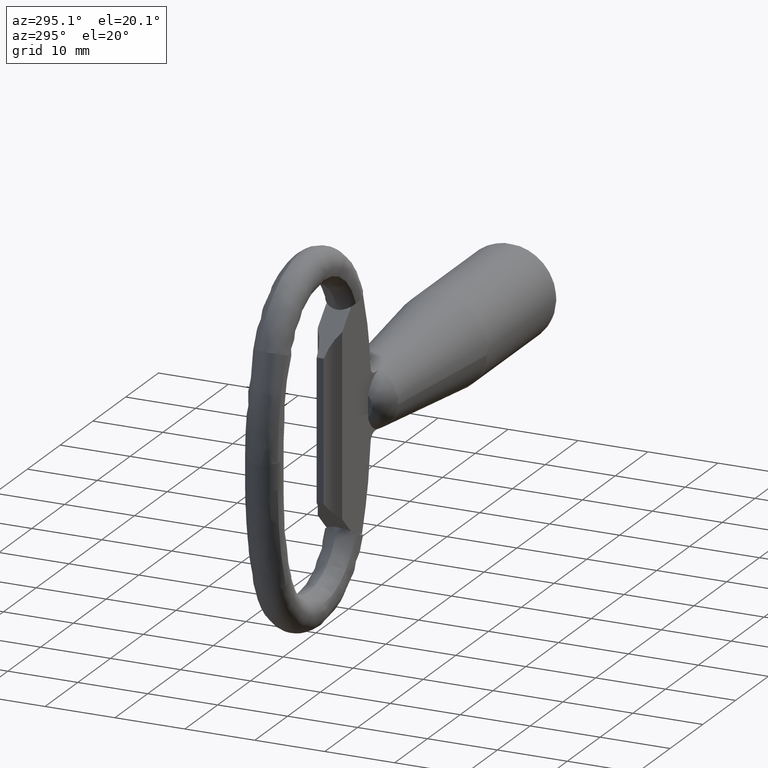
[diagram: clean part render]
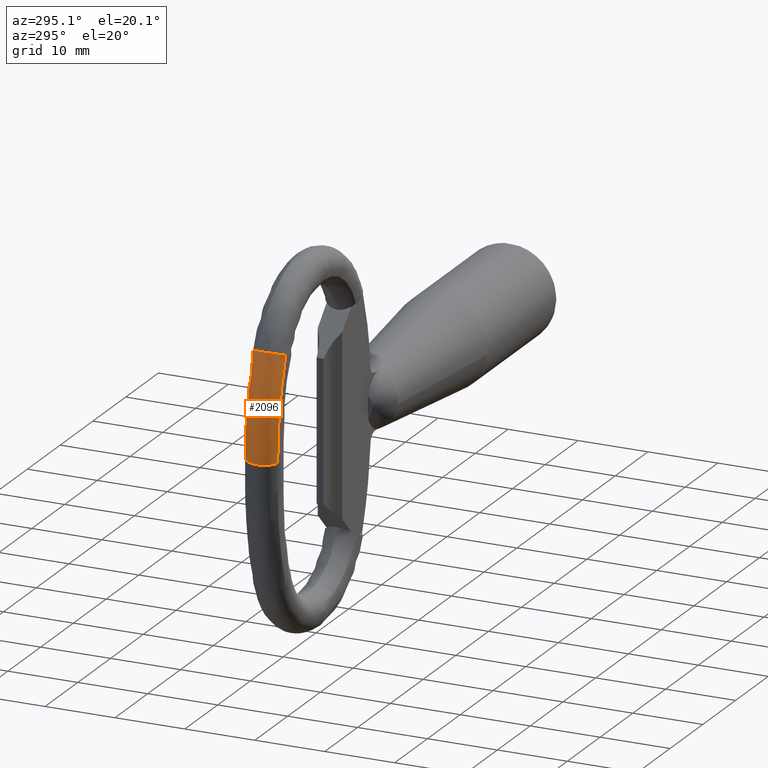
[diagram: same view with one face highlighted and labeled with its STEP entity id]
A machine part, auxiliary view. The second image highlights one B-rep face of the part: STEP entity #2096.
In plain terms, the highlighted face is a freeform B-spline surface patch.
Its self-contained STEP definition (entity closure, byte-faithful):
#671=CARTESIAN_POINT('',(-73.382339028106770,0.878732620741785,1.817413759843512));
#672=VERTEX_POINT('',#671);
#678=CARTESIAN_POINT('',(-73.221575897829794,0.000142196218092,1.817748010046420));
#679=VERTEX_POINT('',#678);
#680=CARTESIAN_POINT('',(-73.382339028106770,0.878732620741785,1.817413759843512));
#681=CARTESIAN_POINT('',(-73.277210214369617,0.598437239628265,1.817631580604299));
#682=CARTESIAN_POINT('',(-73.221202445082028,0.299709251892267,1.817748010046461));
#683=CARTESIAN_POINT('',(-73.221575897829794,0.000142196218092,1.817748010046420));
#684=B_SPLINE_CURVE_WITH_KNOTS('',3,(#680,#681,#682,#683),.UNSPECIFIED.,.F.,.U.,(4,4),(0.942811943035164,1.0),.UNSPECIFIED.);
#685=EDGE_CURVE('',#672,#679,#684,.T.);
#687=CARTESIAN_POINT('',(-76.640842683377940,-2.321964092407329,1.810688581406735));
#688=VERTEX_POINT('',#687);
#700=CARTESIAN_POINT('',(-78.221405813993002,0.000142196218093,1.807425345944015));
#701=VERTEX_POINT('',#700);
#702=CARTESIAN_POINT('',(-76.640842683377940,-2.321964092407329,1.810688581406735));
#703=CARTESIAN_POINT('',(-76.957157929314391,-2.196580526140366,1.810035515984706));
#704=CARTESIAN_POINT('',(-77.248549647016063,-2.008216931563366,1.809433907755128));
#705=CARTESIAN_POINT('',(-77.951982238248405,-1.304782841111800,1.807981598680670));
#706=CARTESIAN_POINT('',(-78.221405813993002,-0.654335404236586,1.807425345944015));
#707=CARTESIAN_POINT('',(-78.221405813993002,0.000142196218093,1.807425345944015));
#708=B_SPLINE_CURVE_WITH_KNOTS('',3,(#702,#703,#704,#705,#706,#707),.UNSPECIFIED.,.F.,.U.,(4,2,4),(0.309999985052760,0.375000000000000,0.500000000000000),.UNSPECIFIED.);
#709=EDGE_CURVE('',#688,#701,#708,.T.);
#711=CARTESIAN_POINT('',(-75.874102193571005,2.495302439578142,1.812271615658776));
#712=VERTEX_POINT('',#711);
#713=CARTESIAN_POINT('',(-78.221405813993002,0.000142196218093,1.807425345944015));
#714=CARTESIAN_POINT('',(-78.221406672503036,0.654633311305209,1.807425346884550));
#715=CARTESIAN_POINT('',(-77.951984282470633,1.305099413616757,1.807981600920205));
#716=CARTESIAN_POINT('',(-77.062424441538582,2.194699065483778,1.809818196039069));
#717=CARTESIAN_POINT('',(-76.476052502969480,2.457051409994972,1.811028824707046));
#718=CARTESIAN_POINT('',(-75.874102193571005,2.495302439578142,1.812271615658776));
#719=B_SPLINE_CURVE_WITH_KNOTS('',3,(#713,#714,#715,#716,#717,#718),.UNSPECIFIED.,.F.,.U.,(4,2,4),(0.500000000000000,0.625000000000000,0.740274356729461),.UNSPECIFIED.);
#720=EDGE_CURVE('',#701,#712,#719,.T.);
#807=CARTESIAN_POINT('',(-75.874102193571005,2.495302439578142,1.812271615658776));
#808=CARTESIAN_POINT('',(-75.823300201365853,2.498533137616930,1.812376469180703));
#809=CARTESIAN_POINT('',(-75.772386952148423,2.500168771184795,1.812481551640716));
#810=CARTESIAN_POINT('',(-75.066762253051053,2.500234395531152,1.813937916790745));
#811=CARTESIAN_POINT('',(-74.416050744369954,2.230887029630775,1.815280828115954));
#812=CARTESIAN_POINT('',(-73.701828974792605,1.517151904643618,1.816754628565761));
#813=CARTESIAN_POINT('',(-73.507550425896028,1.210900207697396,1.817155474939211));
#814=CARTESIAN_POINT('',(-73.382339028106770,0.878732620741785,1.817413759843512));
#815=B_SPLINE_CURVE_WITH_KNOTS('',3,(#807,#808,#809,#810,#811,#812,#813,#814),.UNSPECIFIED.,.F.,.U.,(4,2,2,4),(0.740274356729462,0.750000000000000,0.875000000000000,0.942811943035164),.UNSPECIFIED.);
#816=EDGE_CURVE('',#712,#672,#815,.T.);
#1785=CARTESIAN_POINT('',(-74.155184288781300,-2.321964049157975,16.032139225827731));
#1786=CARTESIAN_POINT('',(-74.452760172619932,-2.196580439509126,16.139397662542979));
#1787=CARTESIAN_POINT('',(-74.726888969168144,-2.008216876224432,16.238204816527070));
#1788=CARTESIAN_POINT('',(-75.388648226099804,-1.304782841111800,16.476729734825948));
#1789=CARTESIAN_POINT('',(-75.642110407882683,-0.654335404236586,16.568087801325760));
#1790=CARTESIAN_POINT('',(-75.642110407882683,0.654619796672772,16.568087801325760));
#1791=CARTESIAN_POINT('',(-75.388648226099804,1.305067233547988,16.476729734825948));
#1792=CARTESIAN_POINT('',(-74.517912361716043,2.230638332380395,16.162881158116900));
#1793=CARTESIAN_POINT('',(-73.906000524907171,2.500062482344925,15.942323274940870));
#1794=CARTESIAN_POINT('',(-72.674594056251266,2.500062482344925,15.498474361227490));
#1795=CARTESIAN_POINT('',(-72.062682219442451,2.230638332380395,15.277916478051520));
#1796=CARTESIAN_POINT('',(-71.191946355058462,1.305067233547986,14.964067901342400));
#1797=CARTESIAN_POINT('',(-70.938484173275782,0.654619796672772,14.872709834842659));
#1798=CARTESIAN_POINT('',(-70.938484173275782,0.000142196218092,14.872709834842659));
#1799=CARTESIAN_POINT('',(-74.165910867581260,-2.321964049157975,16.002370261148830));
#1800=CARTESIAN_POINT('',(-74.463468690491197,-2.196580439509126,16.109678822744659));
#1801=CARTESIAN_POINT('',(-74.737580849197059,-2.008216876224432,16.208532152087489));
#1802=CARTESIAN_POINT('',(-75.399299941628186,-1.304782841111800,16.447168539781291));
#1803=CARTESIAN_POINT('',(-75.652746739898376,-0.654335404236586,16.538569300472009));
#1804=CARTESIAN_POINT('',(-75.652746739898376,0.654619796672772,16.538569300472009));
#1805=CARTESIAN_POINT('',(-75.399299941628186,1.305067233547988,16.447168539781291));
#1806=CARTESIAN_POINT('',(-74.528616925271436,2.230638332380395,16.133173292815759));
#1807=CARTESIAN_POINT('',(-73.916742227547573,2.500062482344925,15.912512336744999));
#1808=CARTESIAN_POINT('',(-72.685410497288302,2.500062482344925,15.468455999965681));
#1809=CARTESIAN_POINT('',(-72.073535799564482,2.230638332380395,15.247795043895000));
#1810=CARTESIAN_POINT('',(-71.202852783207447,1.305067233547986,14.933799796929391));
#1811=CARTESIAN_POINT('',(-70.949405984937513,0.654619796672772,14.842399036238760));
#1812=CARTESIAN_POINT('',(-70.949405984937513,0.000142196218092,14.842399036238760));
#1813=CARTESIAN_POINT('',(-74.176651715205992,-2.321964049157975,15.972561536025250));
#1814=CARTESIAN_POINT('',(-74.474196403826710,-2.196580439509126,16.079906548545289));
#1815=CARTESIAN_POINT('',(-74.748296463141799,-2.008216876224432,16.178793456711301));
#1816=CARTESIAN_POINT('',(-75.409986347098879,-1.304782841111800,16.417510905196050));
#1817=CARTESIAN_POINT('',(-75.663421958153350,-0.654335404236586,16.508942713196980));
#1818=CARTESIAN_POINT('',(-75.663421958153350,0.654619796672772,16.508942713196980));
#1819=CARTESIAN_POINT('',(-75.409986347098879,1.305067233547988,16.417510905196050));
#1820=CARTESIAN_POINT('',(-74.539341762944815,2.230638332380395,16.103408999295070));
#1821=CARTESIAN_POINT('',(-73.927494073548871,2.500062482344926,15.882673088386889));
#1822=CARTESIAN_POINT('',(-72.696216694631858,2.500062482344926,15.438465913094451));
#1823=CARTESIAN_POINT('',(-72.084369005235942,2.230638332380395,15.217730002186370));
#1824=CARTESIAN_POINT('',(-71.213724421081608,1.305067233547986,14.903628096285320));
#1825=CARTESIAN_POINT('',(-70.960288810027393,0.654619796672772,14.812196288284460));
#1826=CARTESIAN_POINT('',(-70.960288810027393,0.000142196218092,14.812196288284460));
#1827=CARTESIAN_POINT('',(-74.388981317951050,-2.321964049157975,15.383279104264650));
#1828=CARTESIAN_POINT('',(-74.687345550813504,-2.196580439509126,15.488349576368140));
#1829=CARTESIAN_POINT('',(-74.962200579495331,-2.008216876224432,15.585141163438060));
#1830=CARTESIAN_POINT('',(-75.625712993493792,-1.304782841111800,15.818800412460700));
#1831=CARTESIAN_POINT('',(-75.879846656650599,-0.654335404236586,15.908294865965050));
#1832=CARTESIAN_POINT('',(-75.879846656650599,0.654619796672772,15.908294865965050));
#1833=CARTESIAN_POINT('',(-75.625712993493792,1.305067233547988,15.818800412460700));
#1834=CARTESIAN_POINT('',(-74.752670343495808,2.230638332380395,15.511354032167750));
#1835=CARTESIAN_POINT('',(-74.139137407245499,2.500062482344925,15.295295308760350));
#1836=CARTESIAN_POINT('',(-72.904468651081189,2.500062482344925,14.860500468048180));
#1837=CARTESIAN_POINT('',(-72.290935714830994,2.230638332380395,14.644441744639741));
#1838=CARTESIAN_POINT('',(-71.417893064836989,1.305067233547986,14.336995364347800));
#1839=CARTESIAN_POINT('',(-71.163759401676103,0.654619796672772,14.247500910842460));
#1840=CARTESIAN_POINT('',(-71.163759401676103,0.000142196218092,14.247500910842460));
#1841=CARTESIAN_POINT('',(-74.582604037590841,-2.321964049157975,14.807373962373809));
#1842=CARTESIAN_POINT('',(-74.883206637523017,-2.196580439509126,14.905938074614550));
#1843=CARTESIAN_POINT('',(-75.160123664183885,-2.008216876224432,14.996735961603409));
#1844=CARTESIAN_POINT('',(-75.828613834145600,-1.304782841111800,15.215926148776100));
#1845=CARTESIAN_POINT('',(-76.084654040916703,-0.654335404236586,15.299878768227851));
#1846=CARTESIAN_POINT('',(-76.084654040916703,0.654619796672772,15.299878768227851));
#1847=CARTESIAN_POINT('',(-75.828613834145600,1.305067233547988,15.215926148776100));
#1848=CARTESIAN_POINT('',(-74.949021505248595,2.230638332380395,14.927518007759399));
#1849=CARTESIAN_POINT('',(-74.330885765549894,2.500062482344925,14.724838455281700));
#1850=CARTESIAN_POINT('',(-73.086954364662816,2.500062482344925,14.316967750756980));
#1851=CARTESIAN_POINT('',(-72.468818624964101,2.230638332380395,14.114288198278260));
#1852=CARTESIAN_POINT('',(-71.589226296067096,1.305067233547986,13.825880057263600));
#1853=CARTESIAN_POINT('',(-71.333186089296007,0.654619796672772,13.741927437809800));
#1854=CARTESIAN_POINT('',(-71.333186089296007,0.000142196218092,13.741927437809800));
#1855=CARTESIAN_POINT('',(-74.940341413865269,-2.321964049157975,13.660441445548891));
#1856=CARTESIAN_POINT('',(-75.243674994182754,-2.196580439509126,13.750249832463529));
#1857=CARTESIAN_POINT('',(-75.523107817342151,-2.008216876224432,13.832981889602280));
#1858=CARTESIAN_POINT('',(-76.197671233311695,-1.304782841111800,14.032700800369181));
#1859=CARTESIAN_POINT('',(-76.456037570273409,-0.654335404236586,14.109195674201841));
#1860=CARTESIAN_POINT('',(-76.456037570273409,0.654619796672772,14.109195674201841));
#1861=CARTESIAN_POINT('',(-76.197671233311695,1.305067233547988,14.032700800369181));
#1862=CARTESIAN_POINT('',(-75.310087791246502,2.230638332380395,13.769912759886420));
#1863=CARTESIAN_POINT('',(-74.686336276491886,2.500062482344925,13.585237798028039));
#1864=CARTESIAN_POINT('',(-73.431103734987090,2.500062482344925,13.213599387147999));
#1865=CARTESIAN_POINT('',(-72.807352220232488,2.230638332380395,13.028924425290640));
#1866=CARTESIAN_POINT('',(-71.919768778167310,1.305067233547986,12.766136384805860));
#1867=CARTESIAN_POINT('',(-71.661402441205595,0.654619796672772,12.689641510975219));
#1868=CARTESIAN_POINT('',(-71.661402441205595,0.000142196218092,12.689641510975219));
#1869=CARTESIAN_POINT('',(-75.106719072180539,-2.321964049157975,13.083144130056629));
#1870=CARTESIAN_POINT('',(-75.411322785705323,-2.196580439509126,13.168545407876479));
#1871=CARTESIAN_POINT('',(-75.691925663651688,-2.008216876224432,13.247217608091200));
#1872=CARTESIAN_POINT('',(-76.369313644559199,-1.304782841111800,13.437135841456939));
#1873=CARTESIAN_POINT('',(-76.628761825683000,-0.654335404236586,13.509876931643159));
#1874=CARTESIAN_POINT('',(-76.628761825683000,0.654619796672772,13.509876931643159));
#1875=CARTESIAN_POINT('',(-76.369313644559199,1.305067233547988,13.437135841456939));
#1876=CARTESIAN_POINT('',(-75.478013669680905,2.230638332380395,13.187243429133600));
#1877=CARTESIAN_POINT('',(-74.851650352071601,2.500062482344925,13.011630902666241));
#1878=CARTESIAN_POINT('',(-73.591161839449796,2.500062482344925,12.658229664023700));
#1879=CARTESIAN_POINT('',(-72.964798521840493,2.230638332380395,12.482617137556360));
#1880=CARTESIAN_POINT('',(-72.073498546962199,1.305067233547986,12.232724725232000));
#1881=CARTESIAN_POINT('',(-71.814050365834291,0.654619796672772,12.159983635046800));
#1882=CARTESIAN_POINT('',(-71.814050365834291,0.000142196218092,12.159983635046800));
#1883=CARTESIAN_POINT('',(-75.567947948336325,-2.321964049157975,11.341322755758860));
#1884=CARTESIAN_POINT('',(-75.876072700189496,-2.196580439509126,11.413426904674621));
#1885=CARTESIAN_POINT('',(-76.159919181036173,-2.008216876224432,11.479849705183360));
#1886=CARTESIAN_POINT('',(-76.845137365384105,-1.304782841111800,11.640197336157501));
#1887=CARTESIAN_POINT('',(-77.107584613663690,-0.654335404236586,11.701612510880199));
#1888=CARTESIAN_POINT('',(-77.107584613663690,0.654619796672772,11.701612510880199));
#1889=CARTESIAN_POINT('',(-76.845137365384105,1.305067233547988,11.640197336157501));
#1890=CARTESIAN_POINT('',(-75.943534491242090,2.230638332380395,11.429213611191519));
#1891=CARTESIAN_POINT('',(-75.309930785052202,2.500062482344925,11.280944263436419));
#1892=CARTESIAN_POINT('',(-74.034871772578313,2.500062482344925,10.982568218151020));
#1893=CARTESIAN_POINT('',(-73.401268066388397,2.230638332380395,10.834298870395919));
#1894=CARTESIAN_POINT('',(-72.499665192246411,1.305067233547986,10.623315145432001));
#1895=CARTESIAN_POINT('',(-72.237217943974997,0.654619796672772,10.561899970707261));
#1896=CARTESIAN_POINT('',(-72.237217943974997,0.000142196218092,10.561899970707261));
#1897=CARTESIAN_POINT('',(-75.824874095828790,-2.321964049157975,10.166861756118180));
#1898=CARTESIAN_POINT('',(-76.134960231412578,-2.196580439509126,10.230000026249980));
#1899=CARTESIAN_POINT('',(-76.420613551423969,-2.008216876224432,10.288163402206710));
#1900=CARTESIAN_POINT('',(-77.110193526852882,-1.304782841111800,10.428572410448361));
#1901=CARTESIAN_POINT('',(-77.374311396390098,-0.654335404236586,10.482350839987699));
#1902=CARTESIAN_POINT('',(-77.374311396390098,0.654619796672772,10.482350839987699));
#1903=CARTESIAN_POINT('',(-77.110193526852882,1.305067233547988,10.428572410448361));
#1904=CARTESIAN_POINT('',(-76.202851453920104,2.230638332380395,10.243823715393560));
#1905=CARTESIAN_POINT('',(-75.565214511207898,2.500062482344925,10.113991101436859));
#1906=CARTESIAN_POINT('',(-74.282039045945197,2.500062482344925,9.852716991259559));
#1907=CARTESIAN_POINT('',(-73.644402103241106,2.230638332380395,9.722884377302860));
#1908=CARTESIAN_POINT('',(-72.737060030308299,1.305067233547986,9.538135682247031));
#1909=CARTESIAN_POINT('',(-72.472942160771098,0.654619796672772,9.484357252707721));
#1910=CARTESIAN_POINT('',(-72.472942160771098,0.000142196218092,9.484357252707721));
#1911=CARTESIAN_POINT('',(-76.441201068953205,-2.321964049157975,6.616650381661637));
#1912=CARTESIAN_POINT('',(-76.755992267479101,-2.196580439509126,6.652686206629257));
#1913=CARTESIAN_POINT('',(-77.045979921393766,-2.008216876224432,6.685882637749861));
#1914=CARTESIAN_POINT('',(-77.746023174039095,-1.304782841111800,6.766020317073139));
#1915=CARTESIAN_POINT('',(-78.014148611343899,-0.654335404236586,6.796714063827040));
#1916=CARTESIAN_POINT('',(-78.014148611343899,0.654619796672772,6.796714063827040));
#1917=CARTESIAN_POINT('',(-77.746023174039095,1.305067233547988,6.766020317073139));
#1918=CARTESIAN_POINT('',(-76.824913631084712,2.230638332380395,6.660576002174089));
#1919=CARTESIAN_POINT('',(-76.177601563947306,2.500062482344925,6.586474742480290));
#1920=CARTESIAN_POINT('',(-74.874955955888495,2.500062482344925,6.437353962275030));
#1921=CARTESIAN_POINT('',(-74.227643888734804,2.230638332380395,6.363252702581220));
#1922=CARTESIAN_POINT('',(-73.306534345780307,1.305067233547986,6.257808387684200));
#1923=CARTESIAN_POINT('',(-73.038408908475603,0.654619796672772,6.227114640930300));
#1924=CARTESIAN_POINT('',(-73.038408908475603,0.000142196218092,6.227114640930300));
#1925=CARTESIAN_POINT('',(-76.645804974141271,-2.321964049157975,4.214144108348466));
#1926=CARTESIAN_POINT('',(-76.962158126448585,-2.196580439509126,4.231839111414967));
#1927=CARTESIAN_POINT('',(-77.253584662121028,-2.008216876224432,4.248139860766552));
#1928=CARTESIAN_POINT('',(-77.957101440141003,-1.304782841111800,4.287490603607879));
#1929=CARTESIAN_POINT('',(-78.226557281669301,-0.654335404236586,4.302562436802335));
#1930=CARTESIAN_POINT('',(-78.226557281669301,0.654619796672772,4.302562436802335));
#1931=CARTESIAN_POINT('',(-77.957101440141003,1.305067233547988,4.287490603607879));
#1932=CARTESIAN_POINT('',(-77.031421469062096,2.230638332380395,4.235713310395606));
#1933=CARTESIAN_POINT('',(-76.380897522014010,2.500062482344925,4.199326686288015));
#1934=CARTESIAN_POINT('',(-75.071788352560588,2.500062482344925,4.126102536004001));
#1935=CARTESIAN_POINT('',(-74.421264405463603,2.230638332380395,4.089715911896540));
#1936=CARTESIAN_POINT('',(-73.495584434368297,1.305067233547986,4.037938618682764));
#1937=CARTESIAN_POINT('',(-73.226128592856313,0.654619796672772,4.022866785488280));
#1938=CARTESIAN_POINT('',(-73.226128592856313,0.000142196218092,4.022866785488280));
#1939=CARTESIAN_POINT('',(-76.640842792486552,-2.321964049157975,1.810688581181469));
#1940=CARTESIAN_POINT('',(-76.957158063329786,-2.196580439509126,1.810035515708018));
#1941=CARTESIAN_POINT('',(-77.248549702354865,-2.008216876224432,1.809433907640875));
#1942=CARTESIAN_POINT('',(-77.951982238248405,-1.304782841111800,1.807981598680670));
#1943=CARTESIAN_POINT('',(-78.221405813993002,-0.654335404236586,1.807425345944015));
#1944=CARTESIAN_POINT('',(-78.221405813993002,0.654619796672772,1.807425345944015));
#1945=CARTESIAN_POINT('',(-77.951982238248405,1.305067233547988,1.807981598680670));
#1946=CARTESIAN_POINT('',(-77.026413112072703,2.230638332380395,1.809892531523045));
#1947=CARTESIAN_POINT('',(-76.375967061487103,2.500062482344925,1.811235444423985));
#1948=CARTESIAN_POINT('',(-75.067014650335693,2.500062482344925,1.813937911566450));
#1949=CARTESIAN_POINT('',(-74.416568599750008,2.230638332380395,1.815280824467390));
#1950=CARTESIAN_POINT('',(-73.490999473574405,1.305067233547986,1.817191757309765));
#1951=CARTESIAN_POINT('',(-73.221575897829794,0.654619796672772,1.817748010046420));
#1952=CARTESIAN_POINT('',(-73.221575897829794,0.000142196218092,1.817748010046420));
#1953=B_SPLINE_SURFACE_WITH_KNOTS('',3,3,((#1785,#1799,#1813,#1827,#1841,#1855,#1869,#1883,#1897,#1911,#1925,#1939),(#1786,#1800,#1814,#1828,#1842,#1856,#1870,#1884,#1898,#1912,#1926,#1940),(#1787,#1801,#1815,#1829,#1843,#1857,#1871,#1885,#1899,#1913,#1927,#1941),(#1788,#1802,#1816,#1830,#1844,#1858,#1872,#1886,#1900,#1914,#1928,#1942),(#1789,#1803,#1817,#1831,#1845,#1859,#1873,#1887,#1901,#1915,#1929,#1943),(#1790,#1804,#1818,#1832,#1846,#1860,#1874,#1888,#1902,#1916,#1930,#1944),(#1791,#1805,#1819,#1833,#1847,#1861,#1875,#1889,#1903,#1917,#1931,#1945),(#1792,#1806,#1820,#1834,#1848,#1862,#1876,#1890,#1904,#1918,#1932,#1946),(#1793,#1807,#1821,#1835,#1849,#1863,#1877,#1891,#1905,#1919,#1933,#1947),(#1794,#1808,#1822,#1836,#1850,#1864,#1878,#1892,#1906,#1920,#1934,#1948),(#1795,#1809,#1823,#1837,#1851,#1865,#1879,#1893,#1907,#1921,#1935,#1949),(#1796,#1810,#1824,#1838,#1852,#1866,#1880,#1894,#1908,#1922,#1936,#1950),(#1797,#1811,#1825,#1839,#1853,#1867,#1881,#1895,#1909,#1923,#1937,#1951),(#1798,#1812,#1826,#1840,#1854,#1868,#1882,#1896,#1910,#1924,#1938,#1952)),.UNSPECIFIED.,.F.,.F.,.U.,(4,2,2,2,2,2,4),(4,2,2,2,2,4),(0.0,1.020985056709300,2.984417858073339,4.947850659437378,6.911283460801417,8.874716262165455,10.838149063529491),(0.0,0.102000130848009,1.986733035606250,3.871465940364490,7.640931749880971,15.179863368913940),.UNSPECIFIED.);
#1954=CARTESIAN_POINT('',(-74.188834034406369,-2.321964018619308,15.938751157498540));
#1955=VERTEX_POINT('',#1954);
#1956=CARTESIAN_POINT('',(-75.510402069683423,0.919496679087487,16.409074648312330));
#1957=VERTEX_POINT('',#1956);
#1958=CARTESIAN_POINT('',(-74.188834034406369,-2.321964018619308,15.938751157498540));
#1959=CARTESIAN_POINT('',(-74.200213062763211,-2.317176657799637,15.942799361402590));
#1960=CARTESIAN_POINT('',(-74.211566681357809,-2.312293756095363,15.946838559549830));
#1961=CARTESIAN_POINT('',(-74.366493473520094,-2.244200481516636,16.001956253672908));
#1962=CARTESIAN_POINT('',(-74.502198509573631,-2.167541451701176,16.050240936260241));
#1963=CARTESIAN_POINT('',(-74.694118554646920,-2.032587922762193,16.118533714185411));
#1964=CARTESIAN_POINT('',(-74.756134408438527,-1.984245185622227,16.140602561381101));
#1965=CARTESIAN_POINT('',(-74.876061934382918,-1.880518421258052,16.183281737607050));
#1966=CARTESIAN_POINT('',(-74.934063310973002,-1.824963996437289,16.203924005377011));
#1967=CARTESIAN_POINT('',(-75.097618456776772,-1.651255482156781,16.262134582462469));
#1968=CARTESIAN_POINT('',(-75.194271604216922,-1.525036168059545,16.296537633911282));
#1969=CARTESIAN_POINT('',(-75.321788566314268,-1.321021705994065,16.341929284658558));
#1970=CARTESIAN_POINT('',(-75.361450859491285,-1.250357018196201,16.356048244091031));
#1971=CARTESIAN_POINT('',(-75.434353732818337,-1.104788210315529,16.382000916563179));
#1972=CARTESIAN_POINT('',(-75.467222615983403,-1.030673853069630,16.393702304472171));
#1973=CARTESIAN_POINT('',(-75.555455172659236,-0.804479532351539,16.425113980853681));
#1974=CARTESIAN_POINT('',(-75.600575542346348,-0.648596870785275,16.441178309855790));
#1975=CARTESIAN_POINT('',(-75.639086546308519,-0.447102128216039,16.454889698254330));
#1976=CARTESIAN_POINT('',(-75.645893590113317,-0.406371641699927,16.457313284473710));
#1977=CARTESIAN_POINT('',(-75.657526329633598,-0.325065162638635,16.461455033976549));
#1978=CARTESIAN_POINT('',(-75.662370929180639,-0.284413890767496,16.463179927677860));
#1979=CARTESIAN_POINT('',(-75.674008506168391,-0.162465939497835,16.467323435393471));
#1980=CARTESIAN_POINT('',(-75.681818428694712,0.000115723836629,16.470104152731281));
#1981=CARTESIAN_POINT('',(-75.674012722318452,0.162665768162903,16.467324937577700));
#1982=CARTESIAN_POINT('',(-75.662385017049019,0.284566611224578,16.463184945385841));
#1983=CARTESIAN_POINT('',(-75.657544826423020,0.325198273061684,16.461461621702728));
#1984=CARTESIAN_POINT('',(-75.645924305770478,0.406457668303320,16.457324223088399));
#1985=CARTESIAN_POINT('',(-75.639121588828559,0.447185390087623,16.454902177610499));
#1986=CARTESIAN_POINT('',(-75.603045079248503,0.636012585503375,16.442057563130341));
#1987=CARTESIAN_POINT('',(-75.562537398154490,0.779946204968252,16.427635491130001));
#1988=CARTESIAN_POINT('',(-75.510402069683423,0.919496679087487,16.409074648312330));
#1989=B_SPLINE_CURVE_WITH_KNOTS('',3,(#1958,#1959,#1960,#1961,#1962,#1963,#1964,#1965,#1966,#1967,#1968,#1969,#1970,#1971,#1972,#1973,#1974,#1975,#1976,#1977,#1978,#1979,#1980,#1981,#1982,#1983,#1984,#1985,#1986,#1987,#1988),.UNSPECIFIED.,.F.,.U.,(4,2,2,2,2,2,2,2,2,2,2,1,2,2,2,4),(0.120070264517867,0.125000000000003,0.187500000000004,0.218750000000005,0.250000000000005,0.312500000000003,0.343750000000003,0.375000000000003,0.437500000000004,0.453125000000004,0.468750000000004,0.500000000000004,0.531250000000004,0.546875000000005,0.562500000000005,0.620051507565362),.UNSPECIFIED.);
#1990=EDGE_CURVE('',#1955,#1957,#1989,.T.);
#1991=ORIENTED_EDGE('',*,*,#1990,.T.);
#1992=CARTESIAN_POINT('',(-73.322634229000400,2.500062482344925,15.630654771567650));
#1993=VERTEX_POINT('',#1992);
#1994=CARTESIAN_POINT('',(-75.510402069683423,0.919496679087487,16.409074648312330));
#1995=CARTESIAN_POINT('',(-75.505919289407416,0.931495750977226,16.407478721201741));
#1996=CARTESIAN_POINT('',(-75.501350543619395,0.943462417401527,16.405852195334479));
#1997=CARTESIAN_POINT('',(-75.467303432708150,1.030763076961971,16.393731081415119));
#1998=CARTESIAN_POINT('',(-75.434462468000604,1.104829511794514,16.382039632032100));
#1999=CARTESIAN_POINT('',(-75.379850226866353,1.213912176275790,16.362598234587580));
#2000=CARTESIAN_POINT('',(-75.360753599614171,1.249918248334147,16.355800133629710));
#2001=CARTESIAN_POINT('',(-75.321175362435071,1.320475138706197,16.341711148403810));
#2002=CARTESIAN_POINT('',(-75.300645601566501,1.355125368017304,16.334403122714541));
#2003=CARTESIAN_POINT('',(-75.194322381650196,1.525259896846425,16.296555712675850));
#2004=CARTESIAN_POINT('',(-75.097640478367126,1.651508677263859,16.262142426345431));
#2005=CARTESIAN_POINT('',(-74.961372222800094,1.796244613937774,16.213643469096318));
#2006=CARTESIAN_POINT('',(-74.933338892267031,1.824530513011147,16.203666400328981));
#2007=CARTESIAN_POINT('',(-74.875703352205619,1.879771678570890,16.183154391525349));
#2008=CARTESIAN_POINT('',(-74.846147804034956,1.906673104277322,16.172636059674620));
#2009=CARTESIAN_POINT('',(-74.756181505577118,1.984491544712379,16.140619326062431));
#2010=CARTESIAN_POINT('',(-74.694158934769717,2.032841017079213,16.118548088112750));
#2011=CARTESIAN_POINT('',(-74.502243654773849,2.167797619301728,16.050257003930199));
#2012=CARTESIAN_POINT('',(-74.366574512683485,2.244435718299097,16.001985092699680));
#2013=CARTESIAN_POINT('',(-74.151296686046550,2.339074087854644,15.925396542346959));
#2014=CARTESIAN_POINT('',(-74.078321159712573,2.366842763590748,15.899435691314560));
#2015=CARTESIAN_POINT('',(-73.931155133670046,2.414555618534231,15.847084573037749));
#2016=CARTESIAN_POINT('',(-73.782404674228516,2.454606850963102,15.794172595799781));
#2017=CARTESIAN_POINT('',(-73.630467296968803,2.479247761219432,15.740132648158870));
#2018=CARTESIAN_POINT('',(-73.515267387698742,2.491699132494429,15.699161339220320));
#2019=CARTESIAN_POINT('',(-73.476659105746904,2.494842287845991,15.685430500573050));
#2020=CARTESIAN_POINT('',(-73.399010899611042,2.499041351983510,15.657816020589809));
#2021=CARTESIAN_POINT('',(-73.360990111326487,2.500062475312750,15.644295110702640));
#2022=CARTESIAN_POINT('',(-73.322634229000400,2.500062482344925,15.630654771567650));
#2023=B_SPLINE_CURVE_WITH_KNOTS('',3,(#1994,#1995,#1996,#1997,#1998,#1999,#2000,#2001,#2002,#2003,#2004,#2005,#2006,#2007,#2008,#2009,#2010,#2011,#2012,#2013,#2014,#2015,#2016,#2017,#2018,#2019,#2020,#2021,#2022),.UNSPECIFIED.,.F.,.U.,(4,2,2,2,2,2,2,2,2,2,2,1,2,2,4),(0.620051507565362,0.625000000000006,0.656250000000007,0.671875000000008,0.687500000000010,0.750000000000017,0.765625000000016,0.781250000000015,0.812500000000010,0.875000000000003,0.906250000000002,0.937500000000002,0.968750000000001,0.984375000000001,1.0),.UNSPECIFIED.);
#2024=EDGE_CURVE('',#1957,#1993,#2023,.T.);
#2025=ORIENTED_EDGE('',*,*,#2024,.T.);
#2026=CARTESIAN_POINT('',(-70.967196843178243,0.000142196218096,14.793024286142870));
#2027=VERTEX_POINT('',#2026);
#2028=CARTESIAN_POINT('',(-70.967196843178243,0.000142196218096,14.793024286142870));
#2029=CARTESIAN_POINT('',(-70.967196844152483,0.000635716664813,14.793024283209940));
#2030=CARTESIAN_POINT('',(-70.967196988845359,0.001129249900982,14.793024334664629));
#2031=CARTESIAN_POINT('',(-70.967293813099189,0.166662465730695,14.793058766647089));
#2032=CARTESIAN_POINT('',(-70.983322974018591,0.328759675724991,14.798758947115420));
#2033=CARTESIAN_POINT('',(-71.029081904797323,0.567895098384325,14.815031431645041));
#2034=CARTESIAN_POINT('',(-71.047990772362169,0.646931730802083,14.821755677231209));
#2035=CARTESIAN_POINT('',(-71.093172725775048,0.803644961065400,14.837822986605969));
#2036=CARTESIAN_POINT('',(-71.119573508547717,0.881549722377166,14.847211461179469));
#2037=CARTESIAN_POINT('',(-71.208237574011775,1.108386881844361,14.878741608887459));
#2038=CARTESIAN_POINT('',(-71.280187855996687,1.252055021678308,14.904328118859389));
#2039=CARTESIAN_POINT('',(-71.407578182682244,1.456102493523985,14.949629912214339));
#2040=CARTESIAN_POINT('',(-71.453459289608176,1.522378321664314,14.965945885572680));
#2041=CARTESIAN_POINT('',(-71.551557073525970,1.650023215560940,15.000830867720691));
#2042=CARTESIAN_POINT('',(-71.603210677614243,1.710695982844341,15.019199639680910));
#2043=CARTESIAN_POINT('',(-71.765936645683666,1.883324471247561,15.077067387562799));
#2044=CARTESIAN_POINT('',(-71.884682304831799,1.986001458911052,15.119295128431411));
#2045=CARTESIAN_POINT('',(-72.077714798855837,2.121982552844414,15.187940468213631));
#2046=CARTESIAN_POINT('',(-72.144725915215602,2.164312788270740,15.211770670569020));
#2047=CARTESIAN_POINT('',(-72.280808690165770,2.241110680899482,15.260163865678470));
#2048=CARTESIAN_POINT('',(-72.419637492381028,2.310577075150715,15.309533620103389));
#2049=CARTESIAN_POINT('',(-72.563832773920637,2.365715734709405,15.360811842086120));
#2050=CARTESIAN_POINT('',(-72.710750540150599,2.413585746438371,15.413058256657340));
#2051=CARTESIAN_POINT('',(-72.785715158785933,2.433918319951430,15.439716944487740));
#2052=CARTESIAN_POINT('',(-72.937889561298064,2.466791274954777,15.493832772307769));
#2053=CARTESIAN_POINT('',(-73.014462502383253,2.479208945349087,15.521063440019489));
#2054=CARTESIAN_POINT('',(-73.130062616567926,2.491707190219183,15.562172872806510));
#2055=CARTESIAN_POINT('',(-73.168719717014355,2.494849589846629,15.575920021357661));
#2056=CARTESIAN_POINT('',(-73.246286856202929,2.499041684790234,15.603504275885360));
#2057=CARTESIAN_POINT('',(-73.284297391069970,2.500062482344925,15.617021505618521));
#2058=CARTESIAN_POINT('',(-73.322634229000400,2.500062482344925,15.630654771567650));
#2059=B_SPLINE_CURVE_WITH_KNOTS('',3,(#2028,#2029,#2030,#2031,#2032,#2033,#2034,#2035,#2036,#2037,#2038,#2039,#2040,#2041,#2042,#2043,#2044,#2045,#2046,#2047,#2048,#2049,#2050,#2051,#2052,#2053,#2054,#2055,#2056,#2057,#2058),.UNSPECIFIED.,.F.,.U.,(4,2,2,2,2,2,2,2,2,2,1,2,2,2,2,4),(0.499813095685979,0.499999999999991,0.562499999999986,0.593749999999984,0.624999999999982,0.687499999999979,0.718749999999979,0.749999999999979,0.812499999999983,0.843749999999985,0.874999999999987,0.906249999999989,0.937499999999991,0.968749999999993,0.984374999999997,1.0),.UNSPECIFIED.);
#2060=EDGE_CURVE('',#2027,#1993,#2059,.T.);
#2061=ORIENTED_EDGE('',*,*,#2060,.F.);
#2062=CARTESIAN_POINT('',(-70.967196843178243,0.000142196218096,14.793024286142870));
#2063=CARTESIAN_POINT('',(-70.968381405635185,0.000142196218092,14.789736763868250));
#2064=CARTESIAN_POINT('',(-70.969561019388678,0.000142196218092,14.786462968680061));
#2065=CARTESIAN_POINT('',(-71.163759401676103,0.000142196218092,14.247500910842460));
#2066=CARTESIAN_POINT('',(-71.333186089296007,0.000142196218092,13.741927437809800));
#2067=CARTESIAN_POINT('',(-71.661402441205595,0.000142196218092,12.689641510975219));
#2068=CARTESIAN_POINT('',(-71.814050365834291,0.000142196218092,12.159983635046800));
#2069=CARTESIAN_POINT('',(-72.237217943974997,0.000142196218092,10.561899970707261));
#2070=CARTESIAN_POINT('',(-72.472942160771098,0.000142196218092,9.484357252707721));
#2071=CARTESIAN_POINT('',(-73.038408908475603,0.000142196218092,6.227114640930300));
#2072=CARTESIAN_POINT('',(-73.226128592856313,0.000142196218092,4.022866785488280));
#2073=CARTESIAN_POINT('',(-73.221575897829794,0.000142196218092,1.817748010046420));
#2074=B_SPLINE_CURVE_WITH_KNOTS('',3,(#2062,#2063,#2064,#2065,#2066,#2067,#2068,#2069,#2070,#2071,#2072,#2073),.UNSPECIFIED.,.F.,.U.,(4,2,2,2,2,4),(-0.000760331492964,0.0,0.125000000000000,0.250000000000000,0.500000000000000,1.0),.UNSPECIFIED.);
#2075=EDGE_CURVE('',#2027,#679,#2074,.T.);
#2076=ORIENTED_EDGE('',*,*,#2075,.T.);
#2077=ORIENTED_EDGE('',*,*,#685,.F.);
#2078=ORIENTED_EDGE('',*,*,#816,.F.);
#2079=ORIENTED_EDGE('',*,*,#720,.F.);
#2080=ORIENTED_EDGE('',*,*,#709,.F.);
#2081=CARTESIAN_POINT('',(-74.188834034406369,-2.321964018619308,15.938751157498540));
#2082=CARTESIAN_POINT('',(-74.389802349199783,-2.321964049157975,15.380836869195640));
#2083=CARTESIAN_POINT('',(-74.582983302605541,-2.321964049157975,14.806158010654190));
#2084=CARTESIAN_POINT('',(-74.940341413865269,-2.321964049157975,13.660441445548891));
#2085=CARTESIAN_POINT('',(-75.106719072180553,-2.321964049157975,13.083144130056629));
#2086=CARTESIAN_POINT('',(-75.567947948336339,-2.321964049157975,11.341322755758860));
#2087=CARTESIAN_POINT('',(-75.824874095828775,-2.321964049157975,10.166861756118180));
#2088=CARTESIAN_POINT('',(-76.441201068953191,-2.321964049157975,6.616650381661638));
#2089=CARTESIAN_POINT('',(-76.645804974141285,-2.321964049157975,4.214144108348467));
#2090=CARTESIAN_POINT('',(-76.640842683377940,-2.321964092407329,1.810688581406735));
#2091=B_SPLINE_CURVE_WITH_KNOTS('',3,(#2081,#2082,#2083,#2084,#2085,#2086,#2087,#2088,#2089,#2090),.UNSPECIFIED.,.F.,.U.,(4,2,2,2,4),(0.000265044303345,0.125000000000000,0.250000000000000,0.500000000000000,1.0),.UNSPECIFIED.);
#2092=EDGE_CURVE('',#1955,#688,#2091,.T.);
#2093=ORIENTED_EDGE('',*,*,#2092,.F.);
#2094=EDGE_LOOP('',(#1991,#2025,#2061,#2076,#2077,#2078,#2079,#2080,#2093));
#2095=FACE_OUTER_BOUND('',#2094,.T.);
#2096=ADVANCED_FACE('',(#2095),#1953,.T.);